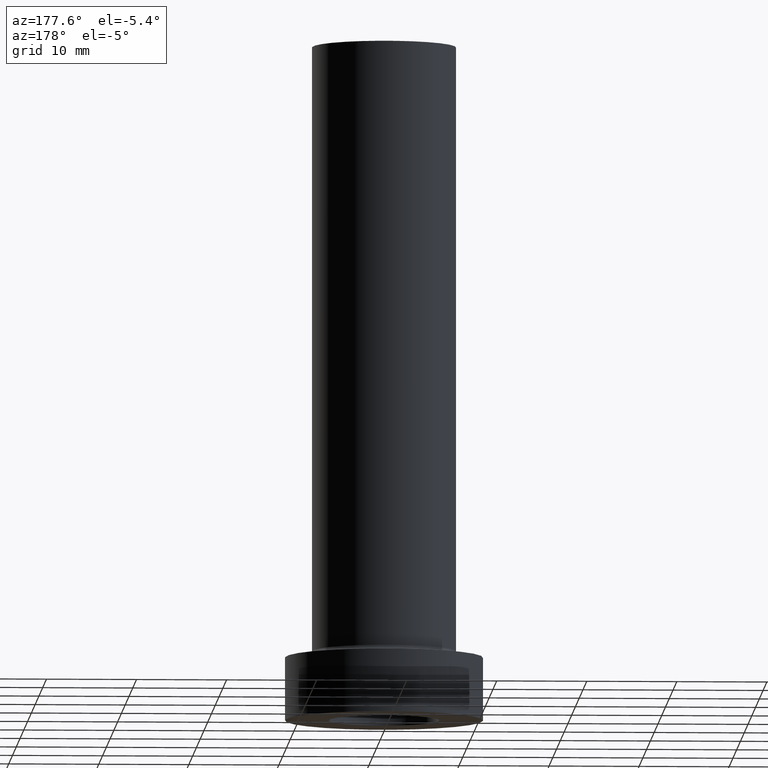
[diagram: clean part render]
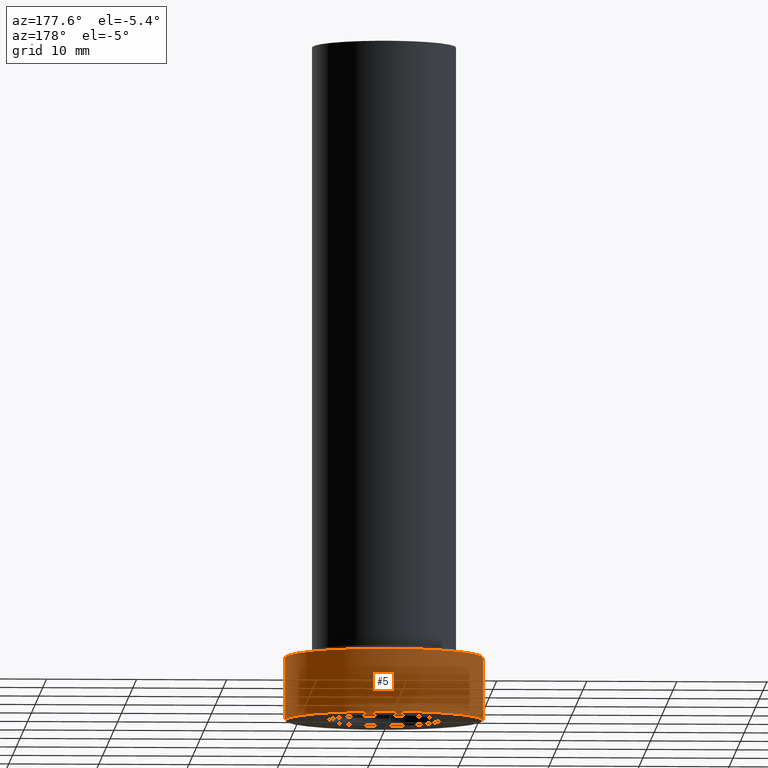
[diagram: same view with one face highlighted and labeled with its STEP entity id]
A machine part, auxiliary view. The second image highlights one B-rep face of the part: STEP entity #5.
In plain terms, the highlighted cylindrical surface (partial cylindrical patch) has radius 11 mm, axis along (-0, -0, -1).
Its self-contained STEP definition (entity closure, byte-faithful):
#5 = ADVANCED_FACE ( 'NONE', ( #203 ), #129, .T. ) ;
#14 = VECTOR ( 'NONE', #307, 1000.000000000000000 ) ;
#21 = DIRECTION ( 'NONE',  ( 1.000000000000000000, 0.000000000000000000, 0.000000000000000000 ) ) ;
#30 = CARTESIAN_POINT ( 'NONE',  ( -11.00000000000000000, 0.000000000000000000, 7.000000000000000000 ) ) ;
#37 = CARTESIAN_POINT ( 'NONE',  ( 11.00000000000000000, 1.347111479062088405E-15, 7.000000000000000000 ) ) ;
#40 = EDGE_CURVE ( 'NONE', #296, #78, #64, .T. ) ;
#63 = AXIS2_PLACEMENT_3D ( 'NONE', #263, #199, #340 ) ;
#64 = LINE ( 'NONE', #104, #14 ) ;
#68 = CARTESIAN_POINT ( 'NONE',  ( 0.000000000000000000, 0.000000000000000000, 0.000000000000000000 ) ) ;
#74 = EDGE_CURVE ( 'NONE', #151, #409, #109, .T. ) ;
#78 = VERTEX_POINT ( 'NONE', #141 ) ;
#104 = CARTESIAN_POINT ( 'NONE',  ( -11.00000000000000000, 0.000000000000000000, 7.000000000000000000 ) ) ;
#107 = CARTESIAN_POINT ( 'NONE',  ( 11.00000000000000000, 1.347111479062088405E-15, 7.000000000000000000 ) ) ;
#109 = LINE ( 'NONE', #107, #387 ) ;
#115 = EDGE_CURVE ( 'NONE', #409, #78, #301, .T. ) ;
#129 = CYLINDRICAL_SURFACE ( 'NONE', #63, 11.00000000000000000 ) ;
#141 = CARTESIAN_POINT ( 'NONE',  ( -11.00000000000000000, 0.000000000000000000, 0.000000000000000000 ) ) ;
#151 = VERTEX_POINT ( 'NONE', #37 ) ;
#164 = EDGE_LOOP ( 'NONE', ( #268, #449, #189, #319 ) ) ;
#185 = EDGE_CURVE ( 'NONE', #151, #296, #381, .T. ) ;
#187 = AXIS2_PLACEMENT_3D ( 'NONE', #206, #450, #21 ) ;
#189 = ORIENTED_EDGE ( 'NONE', *, *, #115, .T. ) ;
#199 = DIRECTION ( 'NONE',  ( -0.000000000000000000, -0.000000000000000000, -1.000000000000000000 ) ) ;
#203 = FACE_OUTER_BOUND ( 'NONE', #164, .T. ) ;
#206 = CARTESIAN_POINT ( 'NONE',  ( 0.000000000000000000, 0.000000000000000000, 7.000000000000000000 ) ) ;
#263 = CARTESIAN_POINT ( 'NONE',  ( 0.000000000000000000, 0.000000000000000000, 7.000000000000000000 ) ) ;
#268 = ORIENTED_EDGE ( 'NONE', *, *, #185, .F. ) ;
#277 = CARTESIAN_POINT ( 'NONE',  ( 11.00000000000000000, 1.347111479062088405E-15, 0.000000000000000000 ) ) ;
#296 = VERTEX_POINT ( 'NONE', #30 ) ;
#301 = CIRCLE ( 'NONE', #362, 11.00000000000000000 ) ;
#307 = DIRECTION ( 'NONE',  ( -0.000000000000000000, -0.000000000000000000, -1.000000000000000000 ) ) ;
#319 = ORIENTED_EDGE ( 'NONE', *, *, #40, .F. ) ;
#340 = DIRECTION ( 'NONE',  ( -1.000000000000000000, 0.000000000000000000, 0.000000000000000000 ) ) ;
#362 = AXIS2_PLACEMENT_3D ( 'NONE', #68, #420, #385 ) ;
#381 = CIRCLE ( 'NONE', #187, 11.00000000000000000 ) ;
#385 = DIRECTION ( 'NONE',  ( 1.000000000000000000, 0.000000000000000000, 0.000000000000000000 ) ) ;
#387 = VECTOR ( 'NONE', #421, 1000.000000000000000 ) ;
#409 = VERTEX_POINT ( 'NONE', #277 ) ;
#420 = DIRECTION ( 'NONE',  ( 0.000000000000000000, 0.000000000000000000, 1.000000000000000000 ) ) ;
#421 = DIRECTION ( 'NONE',  ( -0.000000000000000000, -0.000000000000000000, -1.000000000000000000 ) ) ;
#449 = ORIENTED_EDGE ( 'NONE', *, *, #74, .T. ) ;
#450 = DIRECTION ( 'NONE',  ( 0.000000000000000000, 0.000000000000000000, 1.000000000000000000 ) ) ;